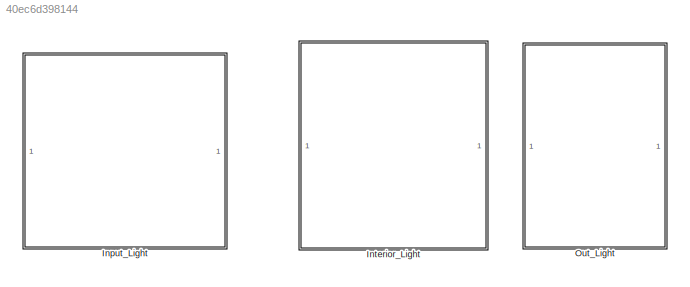
MODEL slx_40ec6d398144
KIND model
CONFIG AbsTol = auto
CONFIG EnableMultiTasking = off
CONFIG FixedStep = auto
CONFIG MaxStep = auto
CONFIG MinStep = auto
CONFIG RelTol = 1e-3
CONFIG SampleTimeConstraint = Unconstrained
CONFIG SolverName = VariableStepAuto
CONFIG StartTime = 0.0
CONFIG StopTime = 10
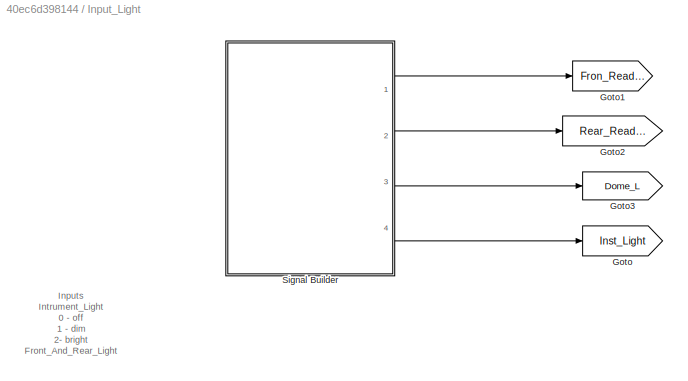
BLOCK [SubSystem] Input_Light
  Ports = []
  RequestExecContextInheritance = off
BLOCK [Goto] Input_Light/Goto
  GotoTag = Inst_Light
  TagVisibility = global
BLOCK [Goto] Input_Light/Goto1
  GotoTag = Fron_Read_Light
  TagVisibility = global
BLOCK [Goto] Input_Light/Goto2
  GotoTag = Rear_Read_Light
  TagVisibility = global
BLOCK [Goto] Input_Light/Goto3
  GotoTag = Dome_L
  TagVisibility = global
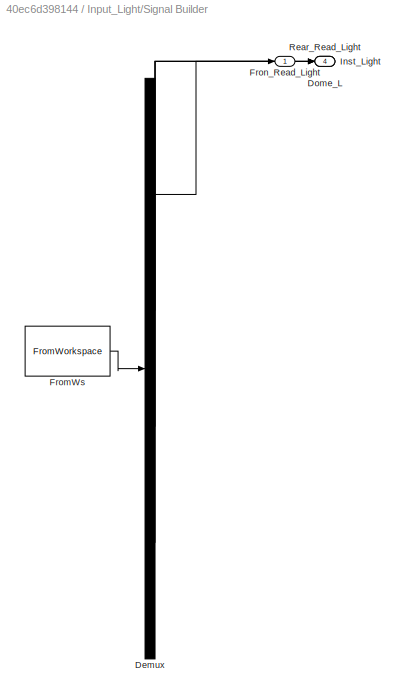
BLOCK [SubSystem] Input_Light/Signal Builder
  ClipboardFcn = sigbuilder_block('clipboard');
  CloseFcn = sigbuilder_block('close');
  ContinueFcn = sigbuilder_block('continue');
  CopyFcn = sigbuilder_block('copy');
  DeleteFcn = sigbuilder_block('delete');
  LoadFcn = sigbuilder_block('load');
  MaskHideContents = on
  ModelCloseFcn = sigbuilder_block('modelClose');
  NameChangeFcn = sigbuilder_block('namechange');
  OpenFcn = sigbuilder_block('open',[373.5 207 544.5 355.5 ]);
  PauseFcn = sigbuilder_block('pause');
  Ports = [0, 4]
  PreSaveFcn = sigbuilder_block('preSave');
  RequestExecContextInheritance = off
  StartFcn = sigbuilder_block('start');
  StopFcn = sigbuilder_block('stop');
  Tag = STV Subsys
BLOCK [Demux] Input_Light/Signal Builder/Demux
  DisplayOption = none
  Ports = [1, 4]
  Tag = STV Demux
BLOCK [Outport] Input_Light/Signal Builder/Dome_L
  Port = 3
  Tag = STV Outport
BLOCK [FromWorkspace] Input_Light/Signal Builder/FromWs
  Tag = STV FromWs
  VariableName = tuvar
BLOCK [Outport] Input_Light/Signal Builder/Fron_Read_Light
  Tag = STV Outport
BLOCK [Outport] Input_Light/Signal Builder/Inst_Light
  Port = 4
  Tag = STV Outport
BLOCK [Outport] Input_Light/Signal Builder/Rear_Read_Light
  Port = 2
  Tag = STV Outport
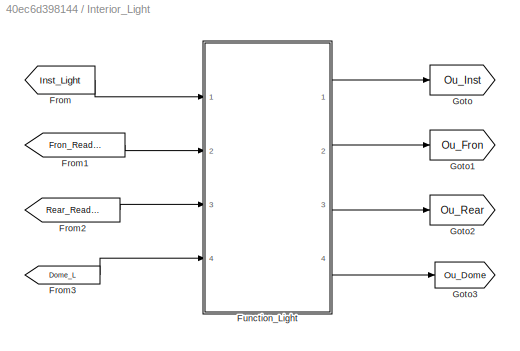
BLOCK [SubSystem] Interior_Light
  Ports = []
  RequestExecContextInheritance = off
BLOCK [From] Interior_Light/From
  GotoTag = Inst_Light
  TagVisibility = global
BLOCK [From] Interior_Light/From1
  GotoTag = Fron_Read_Light
  TagVisibility = global
BLOCK [From] Interior_Light/From2
  GotoTag = Rear_Read_Light
  TagVisibility = global
BLOCK [From] Interior_Light/From3
  GotoTag = Dome_L
  TagVisibility = global
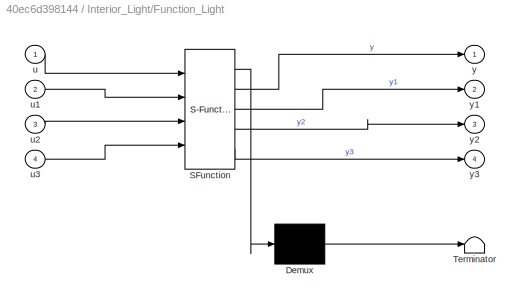
BLOCK [SubSystem] Interior_Light/Function_Light
  ErrorFcn = Stateflow.Translate.translate
  PermitHierarchicalResolution = ExplicitOnly
  Ports = [4, 4]
  RequestExecContextInheritance = off
  SFBlockType = MATLAB Function
  TreatAsAtomicUnit = on
BLOCK [Demux] Interior_Light/Function_Light/ Demux 
  Outputs = 1
  Ports = [1, 1]
BLOCK [S-Function] Interior_Light/Function_Light/ SFunction 
  EnableBusSupport = on
  FunctionName = sf_sfun
  PortCounts = [4 5]
  Ports = [4, 5]
  SFcnIsStateOwnerBlock = off
  SFunctionDeploymentMode = off
  Tag = Stateflow S-Function 2
BLOCK [Terminator] Interior_Light/Function_Light/ Terminator 
BLOCK [Inport] Interior_Light/Function_Light/u
BLOCK [Inport] Interior_Light/Function_Light/u1
  Port = 2
BLOCK [Inport] Interior_Light/Function_Light/u2
  Port = 3
BLOCK [Inport] Interior_Light/Function_Light/u3
  Port = 4
BLOCK [Outport] Interior_Light/Function_Light/y
BLOCK [Outport] Interior_Light/Function_Light/y1
  Port = 2
BLOCK [Outport] Interior_Light/Function_Light/y2
  Port = 3
BLOCK [Outport] Interior_Light/Function_Light/y3
  Port = 4
BLOCK [Goto] Interior_Light/Goto
  GotoTag = Ou_Inst
  TagVisibility = global
BLOCK [Goto] Interior_Light/Goto1
  GotoTag = Ou_Fron
  TagVisibility = global
BLOCK [Goto] Interior_Light/Goto2
  GotoTag = Ou_Rear
  TagVisibility = global
BLOCK [Goto] Interior_Light/Goto3
  GotoTag = Ou_Dome
  TagVisibility = global
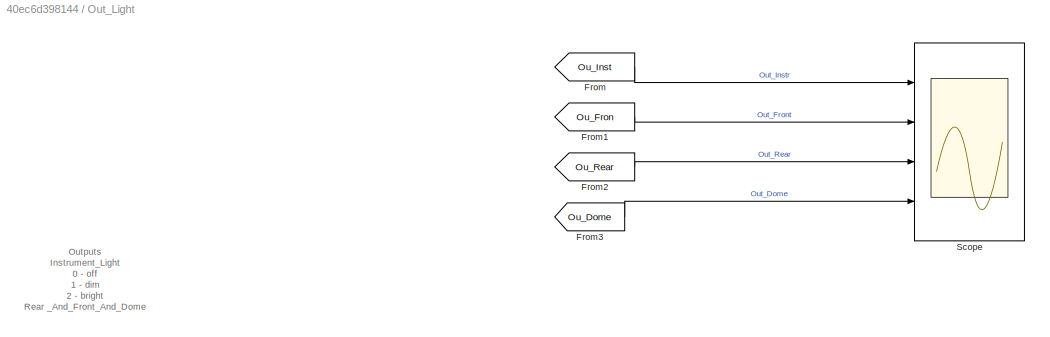
BLOCK [SubSystem] Out_Light
  Ports = []
  RequestExecContextInheritance = off
BLOCK [From] Out_Light/From
  GotoTag = Ou_Inst
  TagVisibility = global
BLOCK [From] Out_Light/From1
  GotoTag = Ou_Fron
  TagVisibility = global
BLOCK [From] Out_Light/From2
  GotoTag = Ou_Rear
  TagVisibility = global
BLOCK [From] Out_Light/From3
  GotoTag = Ou_Dome
  TagVisibility = global
BLOCK [Scope] Out_Light/Scope
  Floating = off
  NumInputPorts = 4
  Ports = [4]
  ScopeSpecificationString = Simulink.scopes.TimeScopeBlockCfg('CurrentConfiguration', extmgr.ConfigurationSet(extmgr.Configuration('Core','General UI',true),extmgr.Configuration('Core','Source UI',true),extmgr.Configuration('Sources','WiredSimulink',true),extmgr.Configuration('Visuals','Time Domain',true,'SerializedDisplays',{struct('MinYLimReal','-0.25','MaxYLimReal','2.25','YLabelReal','','MinYLimMag','0.00000','MaxYLimMag...<+1511ch>
ANNOTATION Input_Light: Inputs Intrument_Light 0 - off 1 - dim 2- bright Front_And_Rear_Light 0 - off 1 - on Dome_Light 0 - off 1 - on
ANNOTATION Out_Light: Outputs Instrument_Light 0 - off 1 - dim 2 - bright Rear _And_Front_And_Dome 0 - off 1 - on
LINE Input_Light/Signal Builder:1 -> Input_Light/Goto1:1
LINE Input_Light/Signal Builder:2 -> Input_Light/Goto2:1
LINE Input_Light/Signal Builder:3 -> Input_Light/Goto3:1
LINE Input_Light/Signal Builder:4 -> Input_Light/Goto:1
LINE Interior_Light/From1:1 -> Interior_Light/Function_Light:2
LINE Interior_Light/From2:1 -> Interior_Light/Function_Light:3
LINE Interior_Light/From3:1 -> Interior_Light/Function_Light:4
LINE Interior_Light/From:1 -> Interior_Light/Function_Light:1
LINE Interior_Light/Function_Light:1 -> Interior_Light/Goto:1
LINE Interior_Light/Function_Light:2 -> Interior_Light/Goto1:1
LINE Interior_Light/Function_Light:3 -> Interior_Light/Goto2:1
LINE Interior_Light/Function_Light:4 -> Interior_Light/Goto3:1
LINE Out_Light/From1:1 -> Out_Light/Scope:2
LINE Out_Light/From2:1 -> Out_Light/Scope:3
LINE Out_Light/From3:1 -> Out_Light/Scope:4
LINE Out_Light/From:1 -> Out_Light/Scope:1
CHART Interior_Light/Function_Light states=1 transitions=1
  STATE_LABEL 'eML_blk_kernel()'
  STATE_LABEL 'SCRIPT:\nfunction [y,y1,y2,y3] = fcn(u,u1,u2,u3)\n\ny3 = u3;\ny2 = u2;\ny1 = u1;\ny = u;\n'
CHART  states=0 transitions=0
